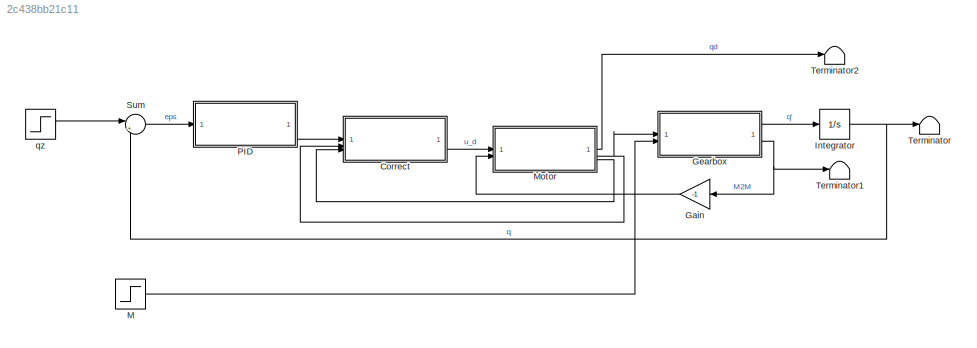
MODEL slx_2c438bb21c11
KIND model
CONFIG AbsTol = auto
CONFIG EnableMultiTasking = off
CONFIG FixedStep = auto
CONFIG MaxStep = auto
CONFIG MinStep = auto
CONFIG RelTol = 1e-3
CONFIG SampleTimeConstraint = Unconstrained
CONFIG SolverName = VariableStepAuto
CONFIG StartTime = 0.0
CONFIG StopTime = 4
BLOCK [SubSystem] Correct
  ReferencedSubsystem = Correct
BLOCK [Gain] Gain
  Gain = -1
  NameLocation = top
BLOCK [SubSystem] Gearbox
  ReferencedSubsystem = Gearbox
BLOCK [Integrator] Integrator
BLOCK [Step] M
  After = 0
  SampleTime = 0
  Time = 0
BLOCK [SubSystem] Motor
  ReferencedSubsystem = Motor
BLOCK [SubSystem] PID
  ReferencedSubsystem = PID
BLOCK [Sum] Sum
  Inputs = |+-
BLOCK [Terminator] Terminator
BLOCK [Terminator] Terminator1
BLOCK [Terminator] Terminator2
BLOCK [Step] qz
  After = 0.1
  SampleTime = 0
  Time = 0
LINE Correct:1 -> Motor:1
LINE Gain:1 -> Motor:2
LINE Gearbox:1 -> Integrator:1
NET Gearbox:2 -> Gain:1, Terminator1:1
NET Integrator:1 -> Sum:2, Terminator:1
LINE M:1 -> Gearbox:2
LINE Motor:1 -> Terminator2:1
NET Motor:2 -> Correct:2, Gearbox:1
LINE Motor:3 -> Correct:3
LINE PID:1 -> Correct:1
LINE Sum:1 -> PID:1
LINE qz:1 -> Sum:1
note: NET lines group one-source signal fan-out (src -> all destinations, sorted); 1:1 wires keep LINE
